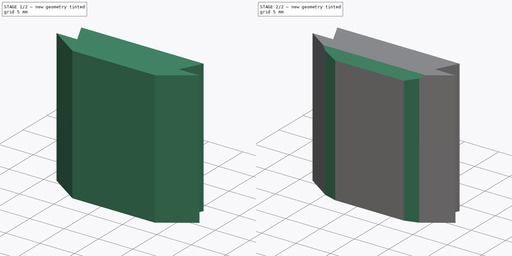
[diagram: build sequence overview — one tinted view per stage of 2, left to right]
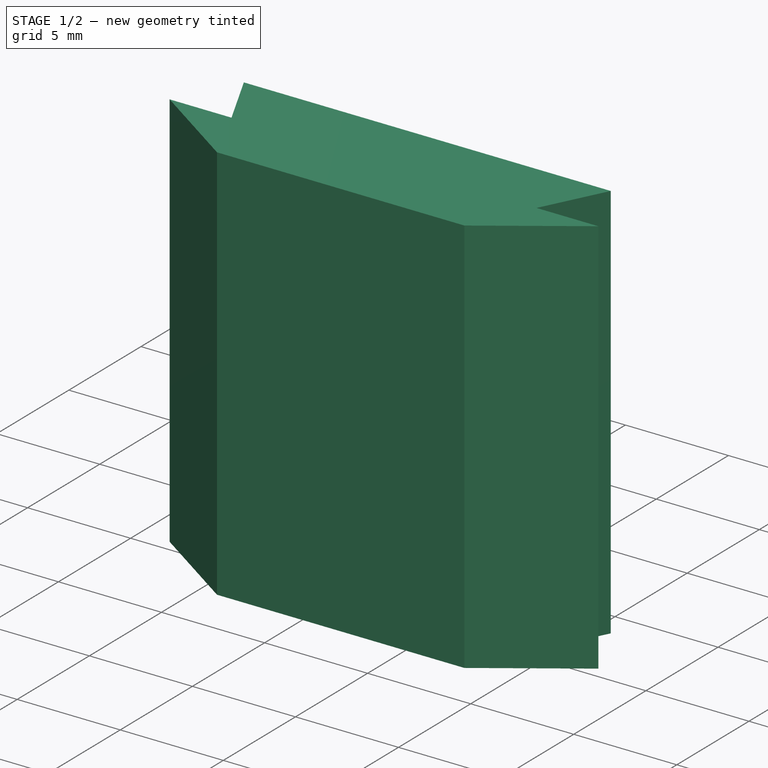
[diagram: stage 1 of 2 — iso view after this stage's code; geometry added in this stage tinted green]
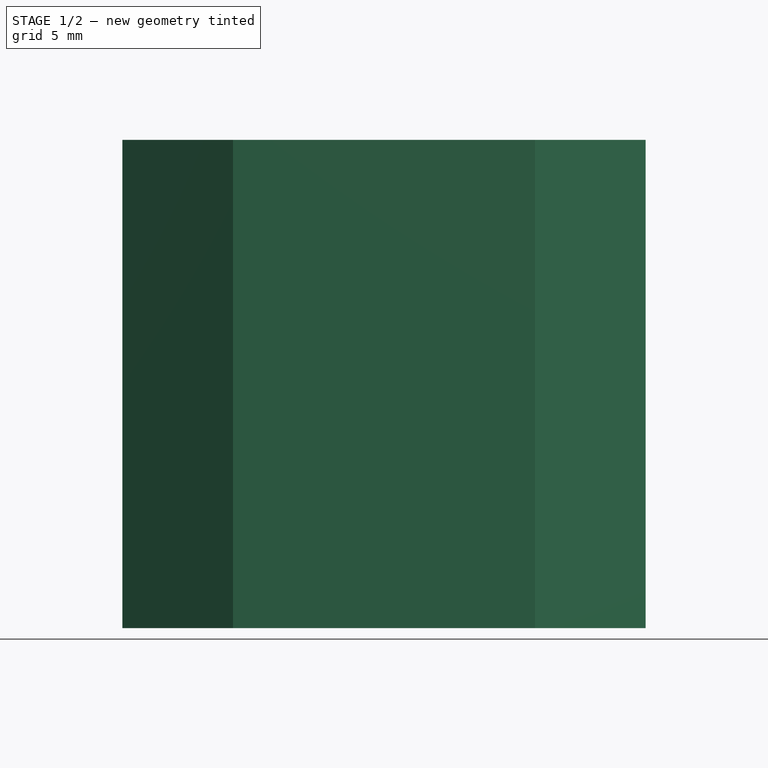
[diagram: stage 1 of 2 — front view after this stage's code; geometry added in this stage tinted green]
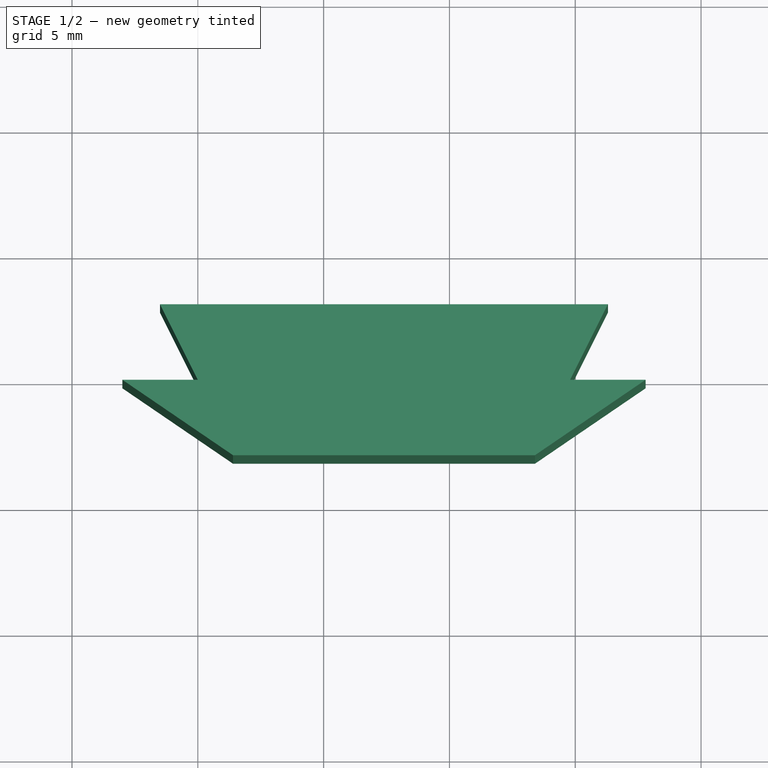
[diagram: stage 1 of 2 — top view after this stage's code; geometry added in this stage tinted green]
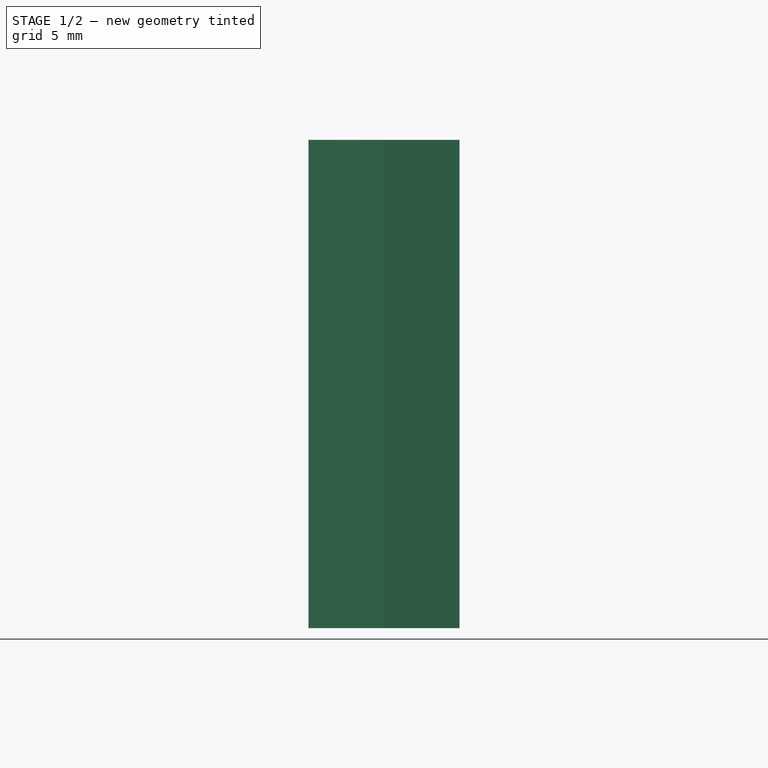
[diagram: stage 1 of 2 — right view after this stage's code; geometry added in this stage tinted green]
FCSTD DOCUMENT  (FreeCAD 0.18R4 (GitTag))
Label: Connector_Blocker
License: All rights reserved
LicenseURL: http://en.wikipedia.org/wiki/All_rights_reserved
objects: PartDesign::ShapeBinder×1, Sketcher::SketchObject×1, PartDesign::Pad×1, PartDesign::Chamfer×1, PartDesign::Body×1
note: 6 computed .brp shape members not serialized (recipe doc carries the construction recipe); baked Part::Feature solids carry a one-line shape summary decoded from their .brp

FEATURE [PartDesign::ShapeBinder] ReferenceMirrored003
  TraceSupport = false
FEATURE [Sketcher::SketchObject] Sketch019
  MapMode = 5
  Placement = pos=(0,0,20) rot=(0,0,1;0rad)
  Support = -> [ReferenceMirrored003]
  sketch-geometry (8):
    g0: LineSegment StartX=-21.5 StartY=-17.15 StartZ=0 EndX=-3.7 EndY=-17.15 EndZ=0
    g1: LineSegment StartX=-3.7 StartY=-17.15 StartZ=0 EndX=-5.2 EndY=-20.15 EndZ=0
    g2: LineSegment StartX=-5.2 StartY=-20.15 StartZ=0 EndX=-2.2 EndY=-20.15 EndZ=0
    g3: LineSegment StartX=-2.2 StartY=-20.15 StartZ=0 EndX=-6.6 EndY=-23.15 EndZ=0
    g4: LineSegment StartX=-6.6 StartY=-23.15 StartZ=0 EndX=-18.6 EndY=-23.15 EndZ=0
    g5: LineSegment StartX=-18.6 StartY=-23.15 StartZ=0 EndX=-23 EndY=-20.15 EndZ=0
    g6: LineSegment StartX=-23 StartY=-20.15 StartZ=0 EndX=-20 EndY=-20.15 EndZ=0
    g7: LineSegment StartX=-20 StartY=-20.15 StartZ=0 EndX=-21.5 EndY=-17.15 EndZ=0
  constraints (24):
    c: Coincident(g0,g1)
    c: Coincident(g1,g2)
    c: Coincident(g2,g3)
    c: Coincident(g3,g4)
    c: Coincident(g4,g5)
    c: Coincident(g5,g6)
    c: Coincident(g6,g7)
    c: Coincident(g7,g0)
    c: Horizontal(g0)
    c: Horizontal(g2)
    c: Horizontal(g6)
    c: Horizontal(g4)
    c: DistanceX(g0,g0) = 17.8
    c: DistanceX(g6,g1) = 14.8
    c: Equal(g7,g1)
    c: Equal(g6,g2)
    c: DistanceY(g6,g0) = 3
    c: Horizontal(g1,g6)
    c: DistanceX(g6,g6) = 3
    c: DistanceY(g4,g6) = 3
    c: Equal(g5,g3)
    c: DistanceX(g2,g-1) = 2.2
    c: DistanceY(g2) = -20.15
    c: DistanceX(g4,g4) = 12
FEATURE [PartDesign::Pad] Pad003
  Length = 19.4
  Length2 = 100
  Profile = -> Sketch019
  Reversed = true
  Type = 0
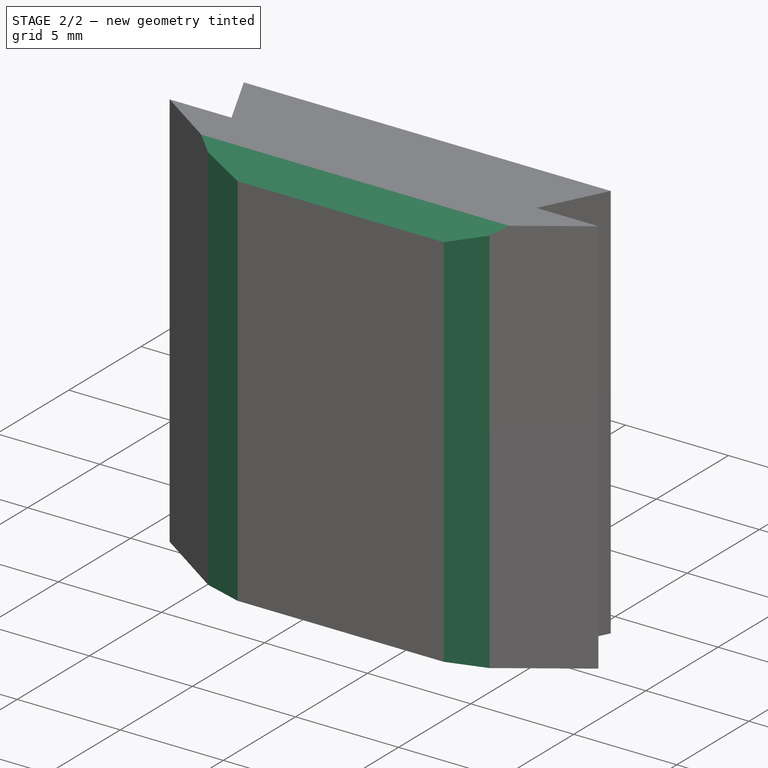
[diagram: stage 2 of 2 — iso view after this stage's code; geometry added in this stage tinted green]
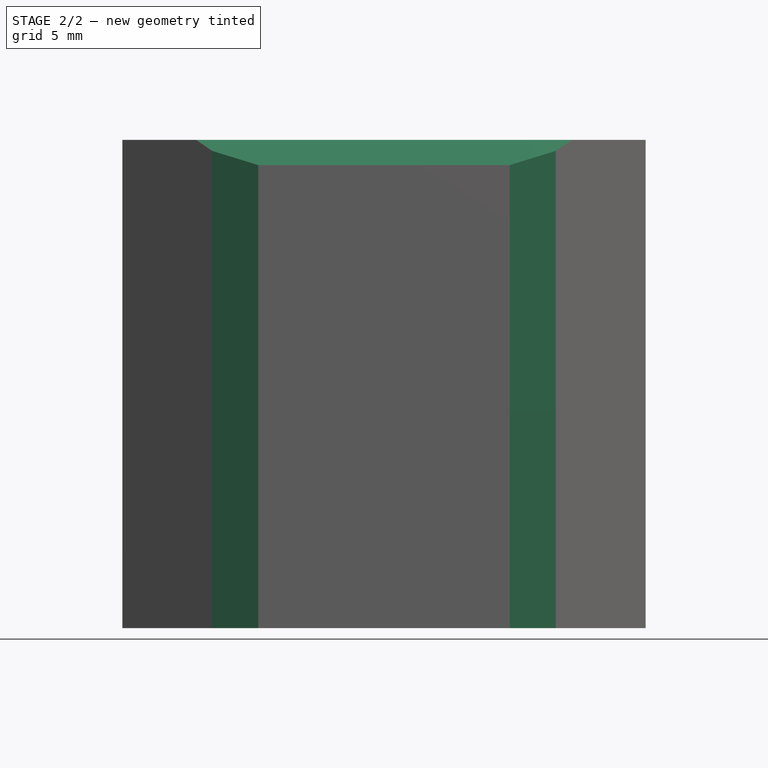
[diagram: stage 2 of 2 — front view after this stage's code; geometry added in this stage tinted green]
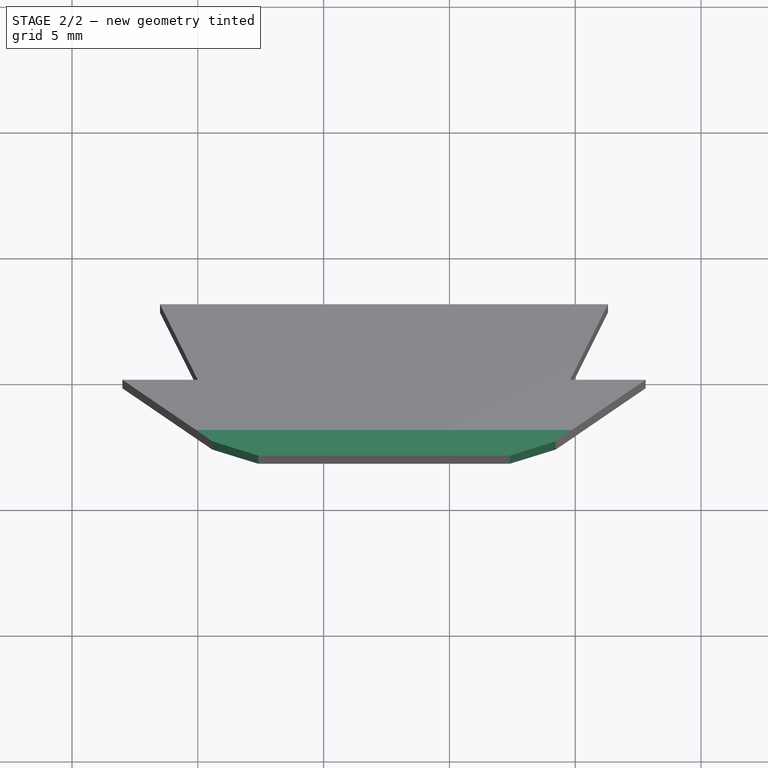
[diagram: stage 2 of 2 — top view after this stage's code; geometry added in this stage tinted green]
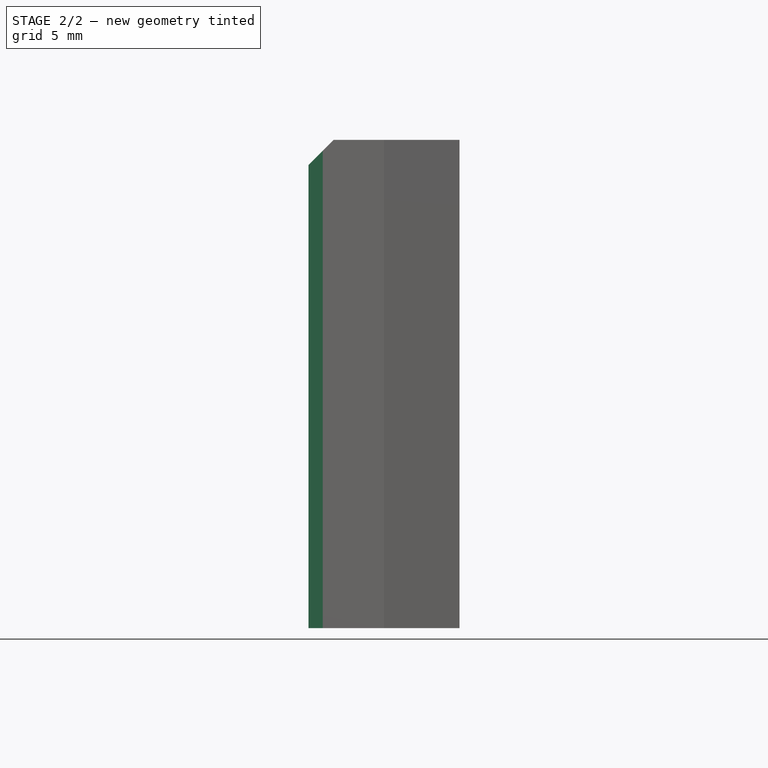
[diagram: stage 2 of 2 — right view after this stage's code; geometry added in this stage tinted green]
FEATURE [PartDesign::Chamfer] Chamfer
  Base = -> Pad003 [Edge14,Edge15,Edge11]
  BaseFeature = -> Pad003
  Size = 1
FEATURE [PartDesign::Body] Body001  label="Connector_Block"
  Group = -> [ReferenceMirrored003,Sketch019,Pad003,Chamfer]
  Origin = -> Origin001
  Tip = -> Chamfer
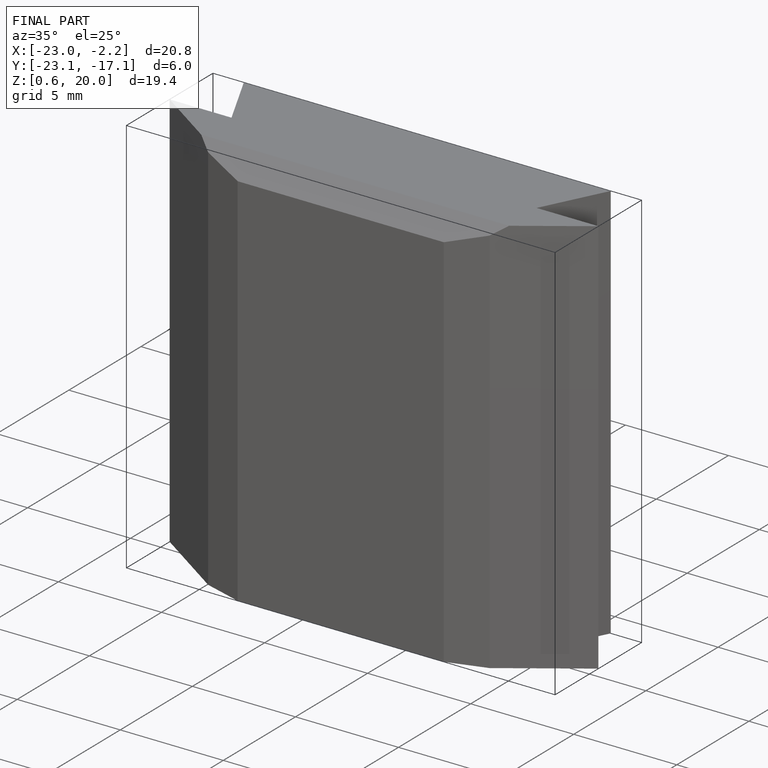
[diagram: finished part — iso view with bounding-box wireframe]
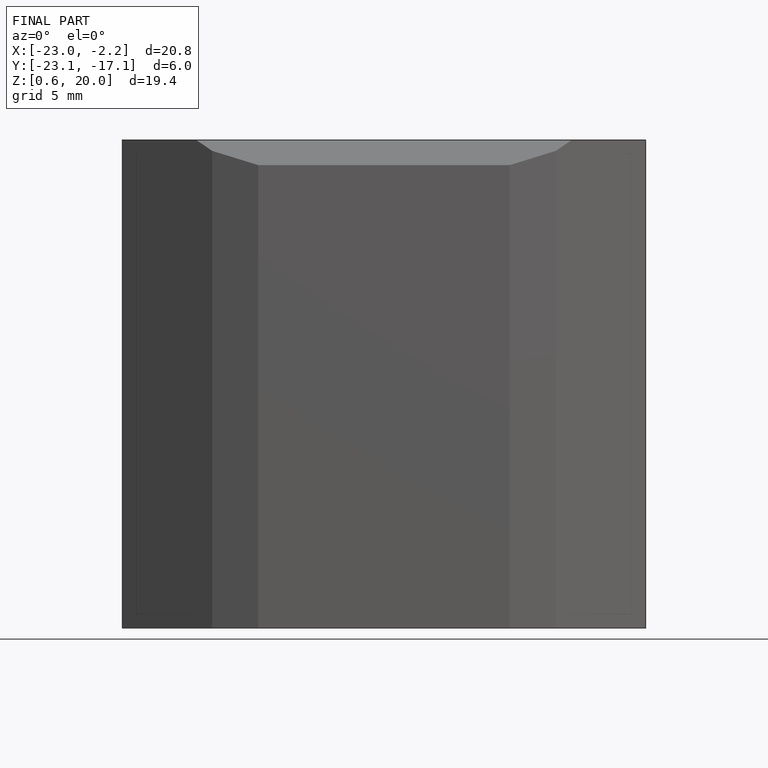
[diagram: finished part — front view with bounding-box wireframe]
